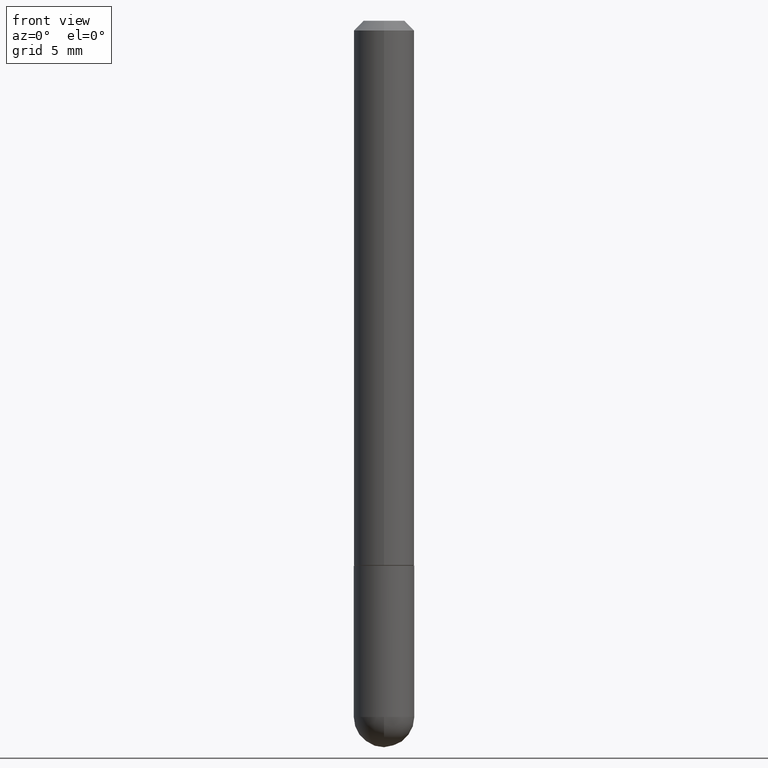
[diagram: clean part render]
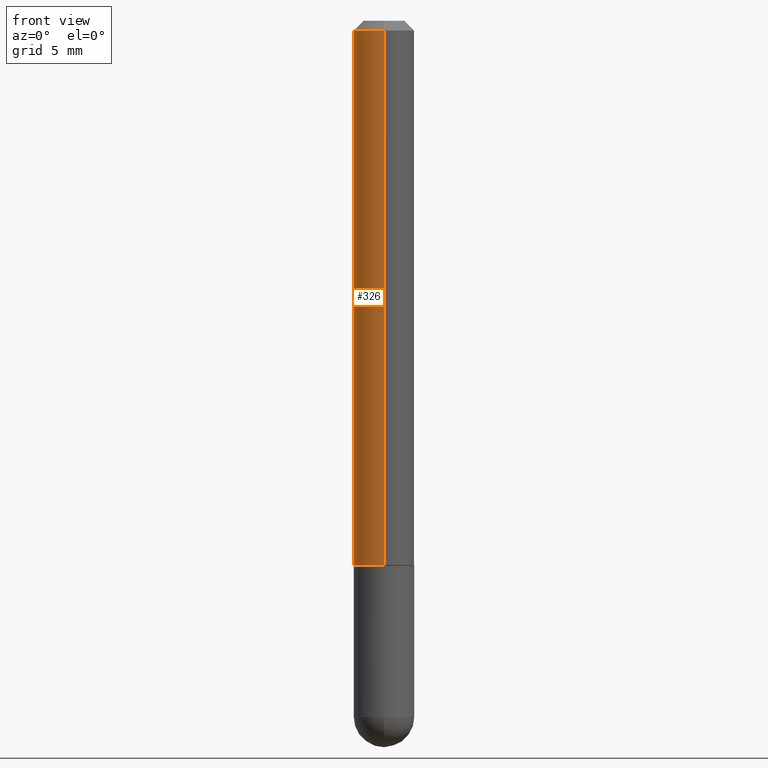
[diagram: same view with one face highlighted and labeled with its STEP entity id]
A machine part, front view. The second image highlights one B-rep face of the part: STEP entity #326.
In plain terms, the highlighted cylindrical surface (edge-blend (fillet) strip) has radius 1.5875 mm, axis along (-0, 0, 1).
Its self-contained STEP definition (entity closure, byte-faithful):
#35 = EDGE_CURVE ( 'NONE', #293, #195, #161, .T. ) ;
#36 = EDGE_LOOP ( 'NONE', ( #78, #170, #200, #322 ) ) ;
#47 = CARTESIAN_POINT ( 'NONE',  ( 0.000000000000000000, 0.000000000000000000, 0.000000000000000000 ) ) ;
#69 = VERTEX_POINT ( 'NONE', #394 ) ;
#74 = AXIS2_PLACEMENT_3D ( 'NONE', #47, #179, #141 ) ;
#78 = ORIENTED_EDGE ( 'NONE', *, *, #230, .F. ) ;
#80 = VECTOR ( 'NONE', #338, 39.37007874015748143 ) ;
#83 = CARTESIAN_POINT ( 'NONE',  ( 4.440892098500769143E-16, 0.06249999999999615585, -1.124000000000000554 ) ) ;
#116 = CARTESIAN_POINT ( 'NONE',  ( 2.771651749888043021E-29, -3.891566748516236296E-15, -1.124000000000000332 ) ) ;
#118 = CIRCLE ( 'NONE', #350, 0.06249999999999995143 ) ;
#122 = LINE ( 'NONE', #399, #260 ) ;
#140 = EDGE_CURVE ( 'NONE', #195, #69, #205, .T. ) ;
#141 = DIRECTION ( 'NONE',  ( -6.982962677686265922E-15, -1.000000000000000000, 3.462247996900564881E-15 ) ) ;
#148 = DIRECTION ( 'NONE',  ( -2.465882339758044742E-29, 3.462247996900564881E-15, 1.000000000000000000 ) ) ;
#161 = CIRCLE ( 'NONE', #382, 0.06250000000000005551 ) ;
#170 = ORIENTED_EDGE ( 'NONE', *, *, #35, .T. ) ;
#179 = DIRECTION ( 'NONE',  ( -2.465882339758044742E-29, 3.462247996900564881E-15, 1.000000000000000000 ) ) ;
#188 = CARTESIAN_POINT ( 'NONE',  ( -4.364351673553642565E-16, -0.06250000000000394129, -1.124000000000000110 ) ) ;
#195 = VERTEX_POINT ( 'NONE', #188 ) ;
#200 = ORIENTED_EDGE ( 'NONE', *, *, #140, .T. ) ;
#202 = CARTESIAN_POINT ( 'NONE',  ( -4.364351673553916201E-16, -0.06250000000000000000, 2.163904998062853051E-16 ) ) ;
#204 = FACE_OUTER_BOUND ( 'NONE', #36, .T. ) ;
#205 = LINE ( 'NONE', #202, #80 ) ;
#220 = EDGE_CURVE ( 'NONE', #375, #69, #118, .T. ) ;
#230 = EDGE_CURVE ( 'NONE', #293, #375, #122, .T. ) ;
#233 = CARTESIAN_POINT ( 'NONE',  ( 4.931764679516106020E-31, -6.924495993801153083E-17, -0.02000000000000006981 ) ) ;
#242 = DIRECTION ( 'NONE',  ( -6.982962677686265922E-15, -1.000000000000000000, 3.483106191921938315E-15 ) ) ;
#260 = VECTOR ( 'NONE', #304, 39.37007874015748143 ) ;
#264 = CARTESIAN_POINT ( 'NONE',  ( 4.364351673553917187E-16, 0.06249999999999988204, -0.02000000000000028491 ) ) ;
#276 = DIRECTION ( 'NONE',  ( -6.982962677686265133E-15, -1.000000000000000000, 4.370956789862817205E-15 ) ) ;
#293 = VERTEX_POINT ( 'NONE', #83 ) ;
#304 = DIRECTION ( 'NONE',  ( -2.465882339758044462E-29, 3.462247996900565276E-15, 1.000000000000000000 ) ) ;
#311 = DIRECTION ( 'NONE',  ( -2.465882339758044742E-29, 3.462247996900564881E-15, 1.000000000000000000 ) ) ;
#322 = ORIENTED_EDGE ( 'NONE', *, *, #220, .F. ) ;
#326 = ADVANCED_FACE ( 'NONE', ( #204 ), #336, .T. ) ;
#336 = CYLINDRICAL_SURFACE ( 'NONE', #74, 0.06250000000000000000 ) ;
#338 = DIRECTION ( 'NONE',  ( -2.465882339758044462E-29, 3.462247996900565276E-15, 1.000000000000000000 ) ) ;
#350 = AXIS2_PLACEMENT_3D ( 'NONE', #233, #311, #242 ) ;
#375 = VERTEX_POINT ( 'NONE', #264 ) ;
#382 = AXIS2_PLACEMENT_3D ( 'NONE', #116, #148, #276 ) ;
#394 = CARTESIAN_POINT ( 'NONE',  ( -4.287811248607198352E-16, -0.06250000000000001388, -0.01999999999999985123 ) ) ;
#399 = CARTESIAN_POINT ( 'NONE',  ( 4.440892098500625669E-16, 0.06250000000000000000, -2.163904998062853051E-16 ) ) ;